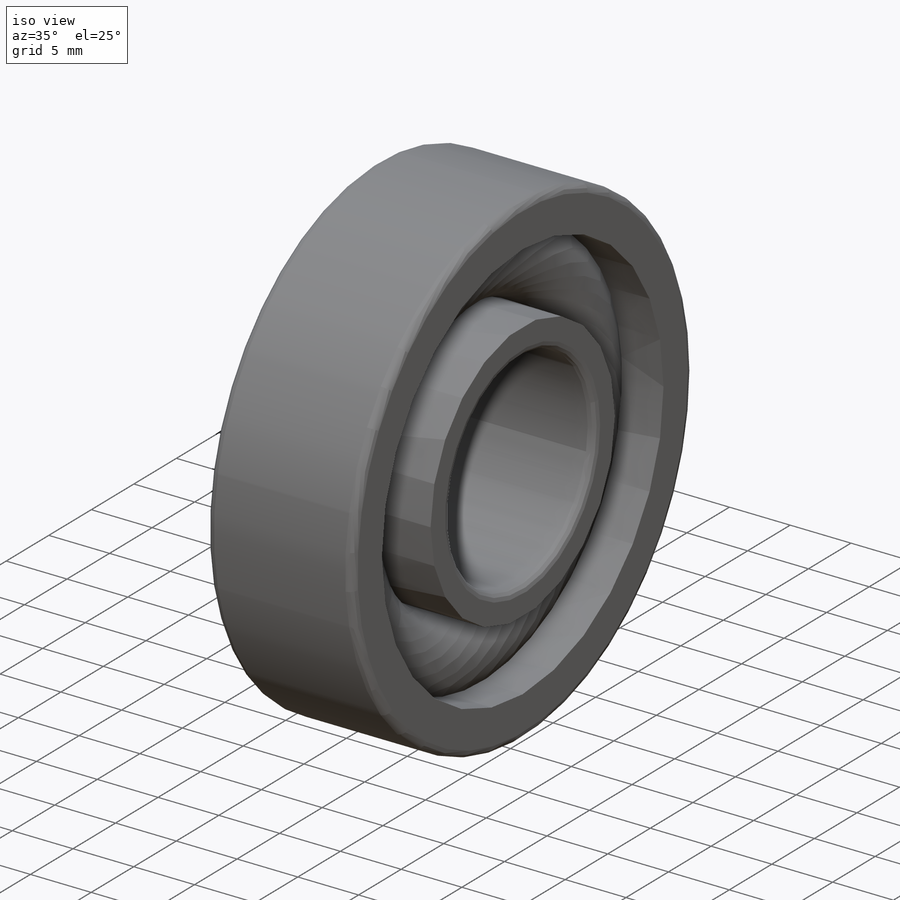
[diagram: iso view]
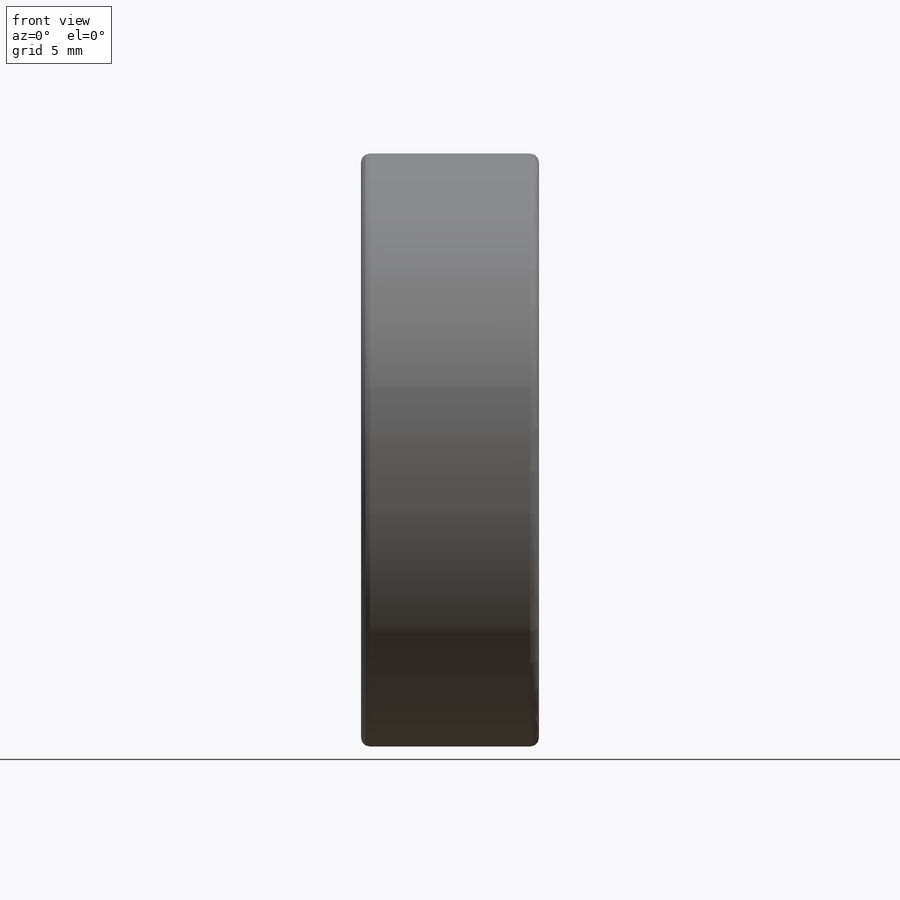
[diagram: front view]
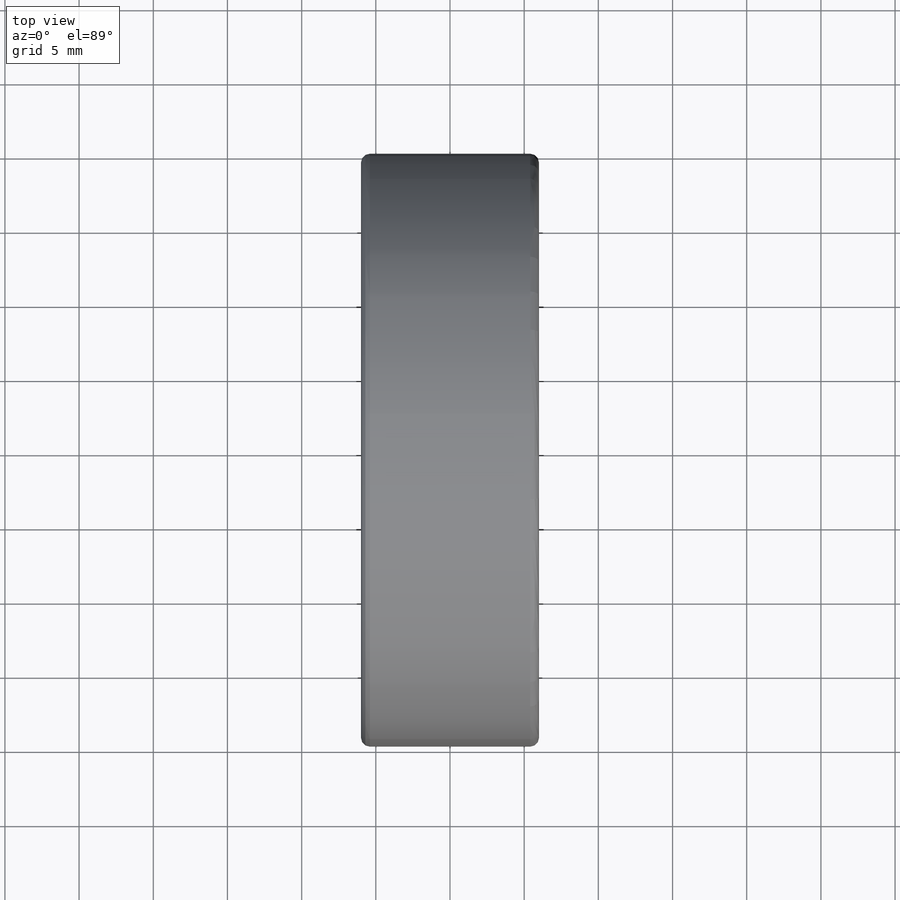
[diagram: top view]
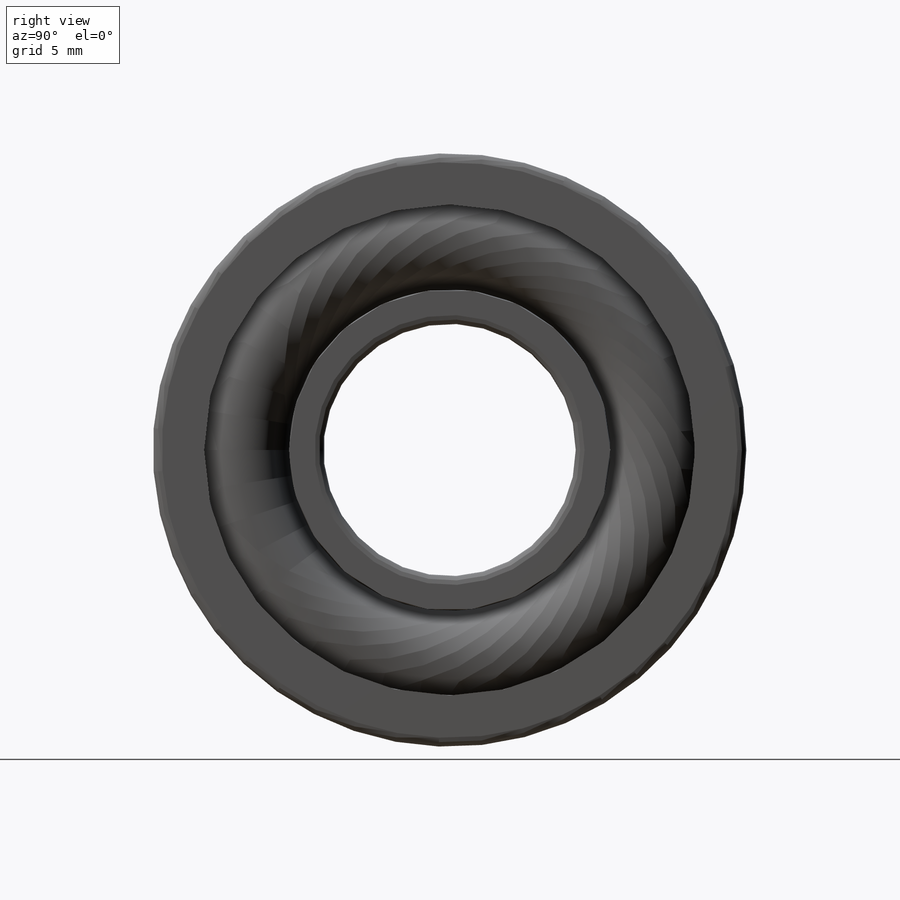
[diagram: right view]
SOLIDWORKS PART (.sldprt)
format: sldprt  version: not decoded by parser v0  size: 378,880 bytes
history: native  units: mm
features: sketch x9, revolve x6, plane x3, cut_revolve x3, pattern_circular x2, material x1 (+12 scaffold rows collapsed; 1 parser-record rows omitted)
feature tree (37):
  parser-record x1  (decoder bookkeeping rows leaked as tree rows — omitted from the tree; the rows remain in map.json)
  scaffold x12  (default folders/planes/origin — collapsed)
  material  "Material <not specified>"
  plane  "Plane1"
  plane  "Plane2"
  plane  "Plane3"
  sketch  "Clipboard"  dims[c1.BallCLRad=22.225mm c2.BallCLRad=14.25mm c2.D2=20.0mm c2.Count=2.0deg c2.D3=~22.36068mm c2.Show_count=2.0deg c2.D1=20.0mm c2.Max_count=2.0deg c3.D1=20.0mm c3.Min_count=1.0deg]
  sketch  "CagSpiSke"  dims[Thickness=1.725mm OD=29.65mm ID=27.35mm]
  revolve  "CageSpine"  Angle=0.001deg
  sketch  "CagBalSke"  dims[CageWallOD=7.59mm BallCLRad=14.25mm]
  revolve  "CageBall"  Angle=360deg
  pattern_circular  "CageBalls"  Count=2 Angle=180deg
  sketch  "CagTrmODSke"  dims[Width=7.592mm ID=29.65mm OD=36.092mm]
  cut_revolve  "CageTrimOD"  Angle=360deg
  sketch  "CagTrmIDSke"  dims[ID=20.912mm OD=27.35mm Width=7.592mm D1=360.0deg]
  sketch  "BalSimSke"  dims[Ball_diameter=6.9mm BallCLRad=14.25mm]
  revolve  "BallsSimplified"  Angle=360deg
  sketch  "BalDetSke"  dims[Ball_diameter=6.9mm BallCLRad=14.25mm]
  revolve  "BallDetailed"  Angle=360deg
  sketch  "InnRacSke"  dims[Fillet_radius=0.6mm Ball_diameter=6.85mm ID=17.0mm OD=23.9mm Width=12.0mm BallCLRad=14.25mm]
  revolve  "InnerRace"  Angle=360deg
  sketch  "OutRacSke"  dims[Fillet_radius=0.6mm Ball_diameter=6.85mm OD=40.0mm ID=33.1mm Width=12.0mm BallCLRad=14.25mm]
  revolve  "OuterRace"  Angle=360deg
  pattern_circular  "BallsDetailed"  Count=2 Angle=180deg CurrentVersion=0mm EditFunction=0mm Type=0mm SubType=0mm Application=0mm STANDARD=0mm TYPE=0mm SIZE=0mm DRAW_CAGE=0mm AUTO_SAVE=0mm CREATION_METHOD=0mm LOCATION_METHOD=0mm
  cut_revolve  "CimBearingSettings6.0"  STANDARD=0mm TYPE=0mm SIZE=0mm DRAW_CAGE=0mm AUTO_SAVE=0mm CREATION_METHOD=0mm LOCATION_METHOD=0mm PartNumberID=0mm ConfigurationName=0mm CopiedFlag=1  [1 undecoded]
  cut_revolve  "SolidworksEditDefinition"  PartNumberID=0mm ConfigurationName=0mm CopiedFlag=0  [1 undecoded]
decode coverage: 20 of 20 modeling features carry decoded parameters
note: ~ marks probable driven/reference dimensions
note: 2 parameter values undecoded
note: suppression state not decoded; provenance and decode notes live in map.json
